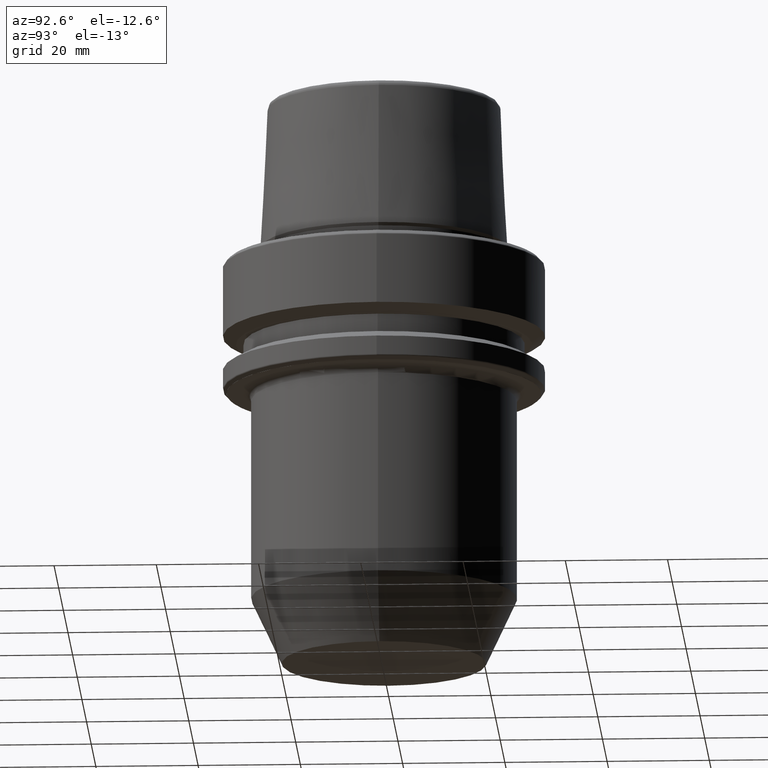
[diagram: clean part render]
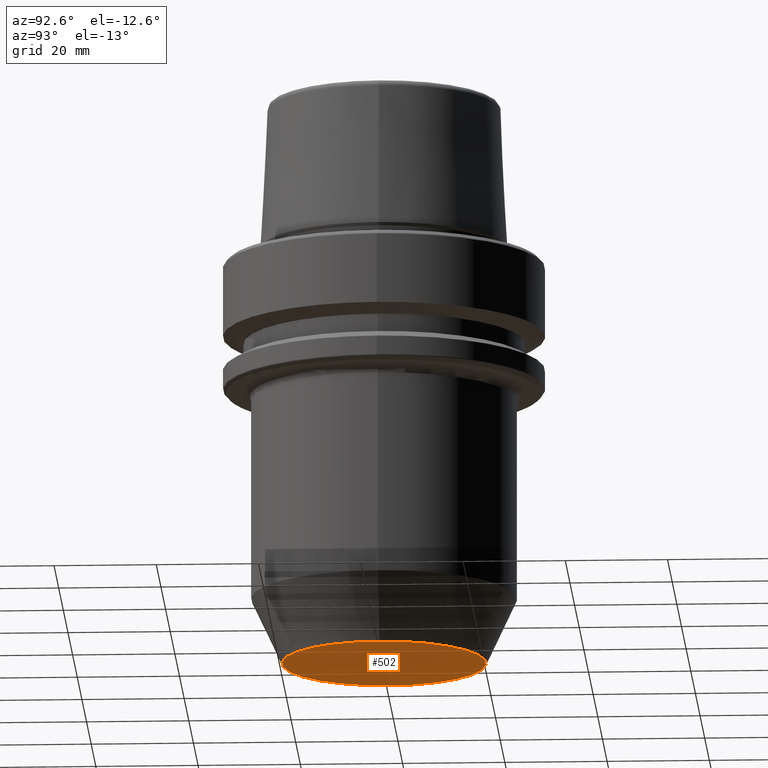
[diagram: same view with one face highlighted and labeled with its STEP entity id]
A machine part, auxiliary view. The second image highlights one B-rep face of the part: STEP entity #502.
In plain terms, the highlighted planar face has unit normal (0, -0, 1).
Its self-contained STEP definition (entity closure, byte-faithful):
#51 = CARTESIAN_POINT ( 'NONE',  ( -20.00000000000000000, 2.816687638038912400E-015, -80.00000000000000000 ) ) ;
#166 = DIRECTION ( 'NONE',  ( -0.0000000000000000000, -0.0000000000000000000, 1.000000000000000000 ) ) ;
#310 = DIRECTION ( 'NONE',  ( 0.0000000000000000000, -0.0000000000000000000, 1.000000000000000000 ) ) ;
#345 = FACE_OUTER_BOUND ( 'NONE', #969, .T. ) ;
#358 = VERTEX_POINT ( 'NONE', #782 ) ;
#360 = CARTESIAN_POINT ( 'NONE',  ( 0.0000000000000000000, 20.00000000000000000, -80.00000000000000000 ) ) ;
#502 = ADVANCED_FACE ( 'NONE', ( #345 ), #1155, .F. ) ;
#512 = DIRECTION ( 'NONE',  ( -0.0000000000000000000, -0.0000000000000000000, 1.000000000000000000 ) ) ;
#551 = AXIS2_PLACEMENT_3D ( 'NONE', #360, #310, #808 ) ;
#561 = EDGE_CURVE ( 'NONE', #358, #630, #1013, .T. ) ;
#629 = CIRCLE ( 'NONE', #881, 20.00000000000000000 ) ;
#630 = VERTEX_POINT ( 'NONE', #51 ) ;
#782 = CARTESIAN_POINT ( 'NONE',  ( 20.00000000000000000, 0.0000000000000000000, -80.00000000000000000 ) ) ;
#789 = CARTESIAN_POINT ( 'NONE',  ( 0.0000000000000000000, 0.0000000000000000000, -80.00000000000000000 ) ) ;
#808 = DIRECTION ( 'NONE',  ( 1.000000000000000000, 0.0000000000000000000, 0.0000000000000000000 ) ) ;
#819 = CARTESIAN_POINT ( 'NONE',  ( 0.0000000000000000000, 0.0000000000000000000, -80.00000000000000000 ) ) ;
#879 = ORIENTED_EDGE ( 'NONE', *, *, #1168, .F. ) ;
#881 = AXIS2_PLACEMENT_3D ( 'NONE', #819, #166, #1244 ) ;
#969 = EDGE_LOOP ( 'NONE', ( #991, #879 ) ) ;
#991 = ORIENTED_EDGE ( 'NONE', *, *, #561, .F. ) ;
#1013 = CIRCLE ( 'NONE', #1051, 20.00000000000000000 ) ;
#1051 = AXIS2_PLACEMENT_3D ( 'NONE', #789, #512, #1147 ) ;
#1147 = DIRECTION ( 'NONE',  ( 1.000000000000000000, 0.0000000000000000000, 0.0000000000000000000 ) ) ;
#1155 = PLANE ( 'NONE',  #551 ) ;
#1168 = EDGE_CURVE ( 'NONE', #630, #358, #629, .T. ) ;
#1244 = DIRECTION ( 'NONE',  ( 1.000000000000000000, 0.0000000000000000000, 0.0000000000000000000 ) ) ;